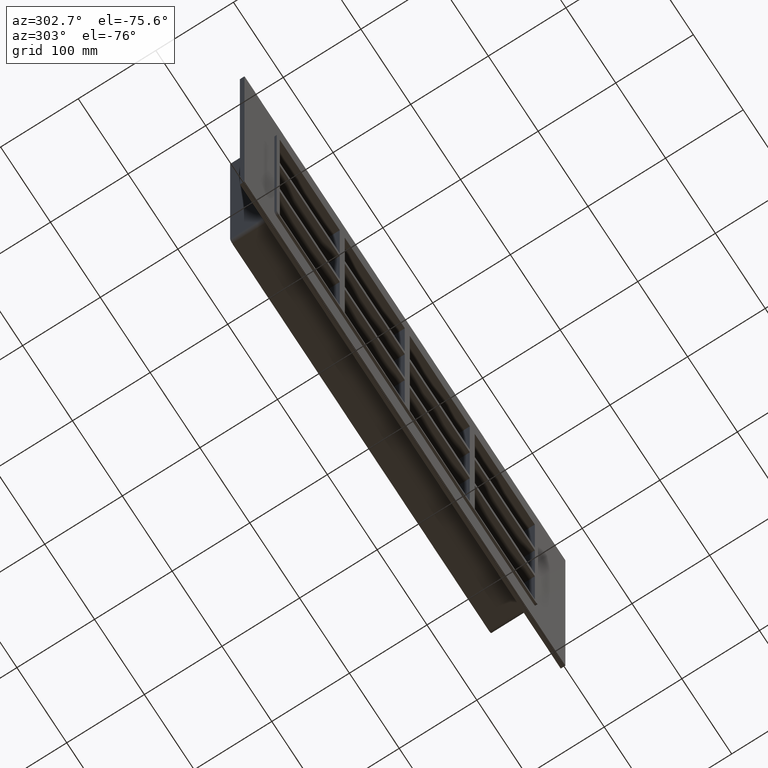
[diagram: clean part render]
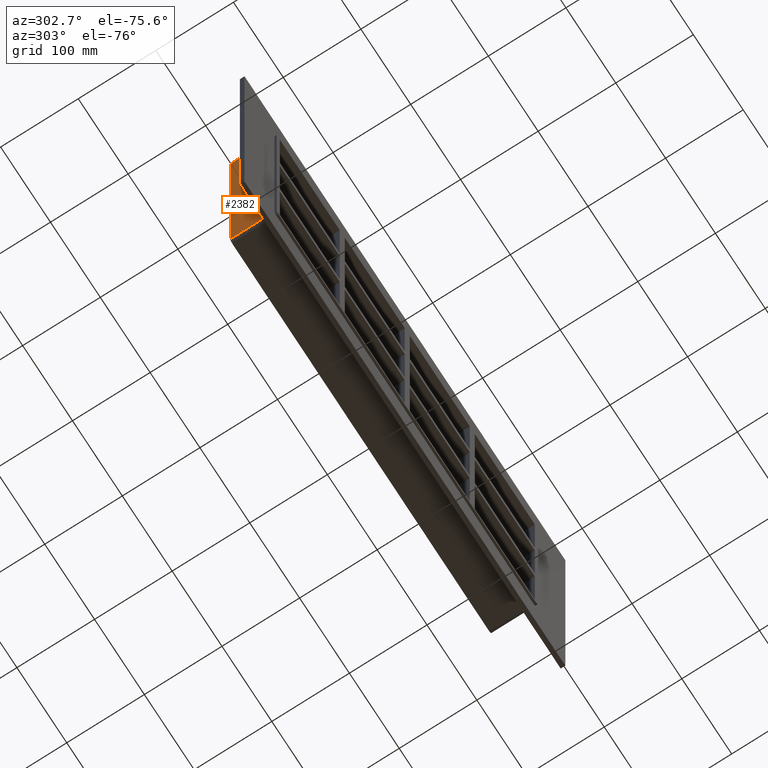
[diagram: same view with one face highlighted and labeled with its STEP entity id]
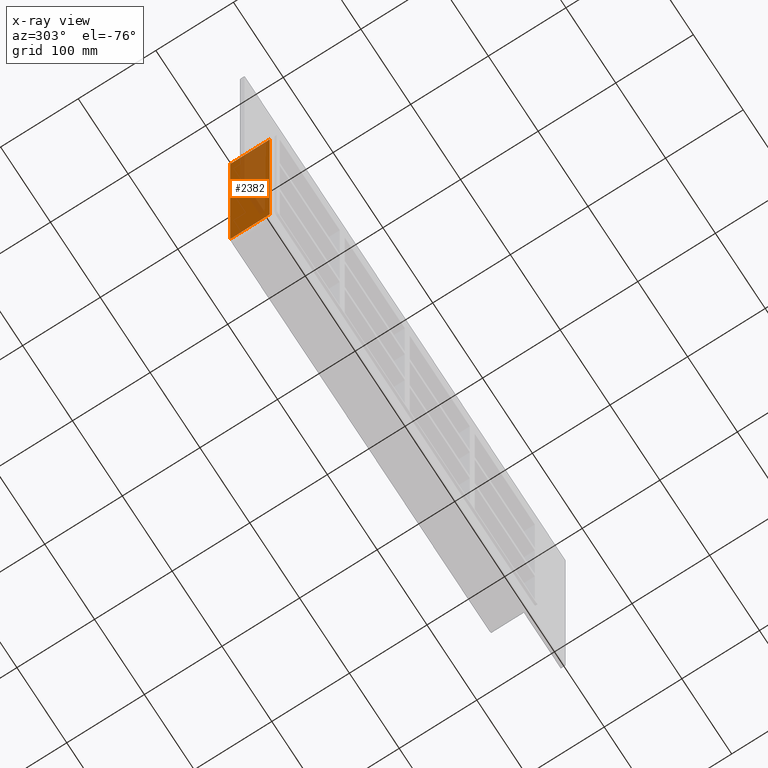
[diagram: x-ray of the same camera — body ghosted, the highlighted face saturated]
A machine part, auxiliary view. The second image highlights one B-rep face of the part: STEP entity #2382.
The next image is the same camera in x-ray: the body ghosted, the highlighted face saturated — about 44% of this face is hidden behind the body in this view.
In plain terms, the highlighted planar face has unit normal (-1, 0, 0).
Its self-contained STEP definition (entity closure, byte-faithful):
#722=CARTESIAN_POINT('',(-262.0,57.0,-163.5));
#723=VERTEX_POINT('',#722);
#731=CARTESIAN_POINT('',(-262.0,57.0,163.5));
#732=VERTEX_POINT('',#731);
#733=CARTESIAN_POINT('',(-262.0,57.0,-163.5));
#734=DIRECTION('',(0.0,0.0,1.0));
#735=VECTOR('',#734,327.0);
#736=LINE('',#733,#735);
#737=EDGE_CURVE('',#723,#732,#736,.T.);
#1881=CARTESIAN_POINT('',(-262.0,6.000000000000001,-163.5));
#1882=VERTEX_POINT('',#1881);
#1932=CARTESIAN_POINT('',(-262.0,6.000000000000001,163.5));
#1933=VERTEX_POINT('',#1932);
#1941=CARTESIAN_POINT('',(-262.0,6.000000000000001,-163.5));
#1942=DIRECTION('',(0.0,0.0,1.0));
#1943=VECTOR('',#1942,327.0);
#1944=LINE('',#1941,#1943);
#1945=EDGE_CURVE('',#1882,#1933,#1944,.T.);
#2355=CARTESIAN_POINT('',(-262.0,6.000000000000001,-163.5));
#2356=DIRECTION('',(0.0,1.0,0.0));
#2357=VECTOR('',#2356,51.0);
#2358=LINE('',#2355,#2357);
#2359=EDGE_CURVE('',#1882,#723,#2358,.T.);
#2366=CARTESIAN_POINT('',(-262.0,0.0,-169.50000000000003));
#2367=DIRECTION('',(-1.0,0.0,0.0));
#2368=DIRECTION('',(0.0,0.0,1.0));
#2369=AXIS2_PLACEMENT_3D('',#2366,#2367,#2368);
#2370=PLANE('',#2369);
#2371=ORIENTED_EDGE('',*,*,#1945,.T.);
#2372=CARTESIAN_POINT('',(-262.0,57.0,163.5));
#2373=DIRECTION('',(0.0,-1.0,0.0));
#2374=VECTOR('',#2373,51.0);
#2375=LINE('',#2372,#2374);
#2376=EDGE_CURVE('',#732,#1933,#2375,.T.);
#2377=ORIENTED_EDGE('',*,*,#2376,.F.);
#2378=ORIENTED_EDGE('',*,*,#737,.F.);
#2379=ORIENTED_EDGE('',*,*,#2359,.F.);
#2380=EDGE_LOOP('',(#2371,#2377,#2378,#2379));
#2381=FACE_OUTER_BOUND('',#2380,.T.);
#2382=ADVANCED_FACE('',(#2381),#2370,.T.);